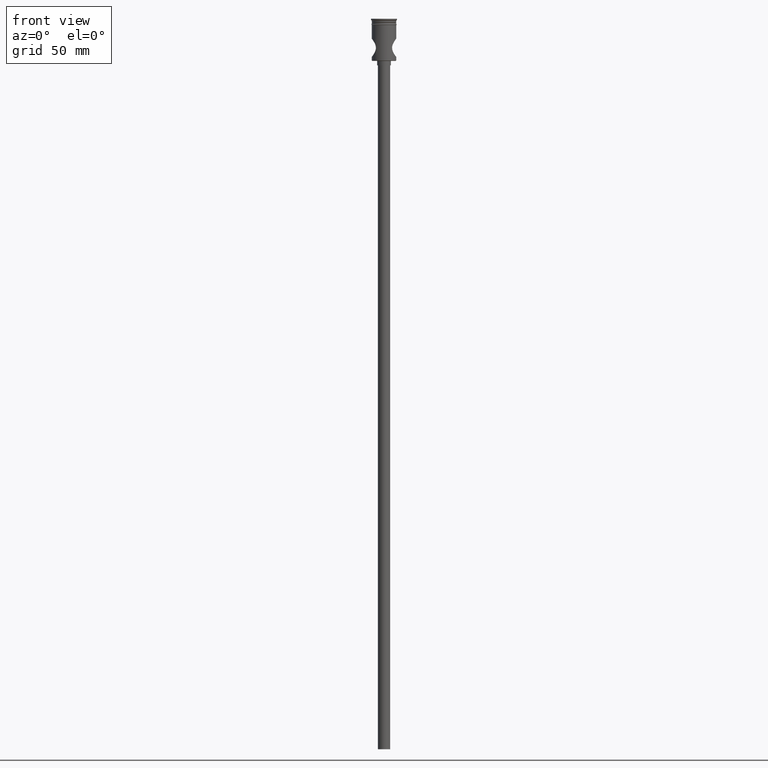
[diagram: clean part render]
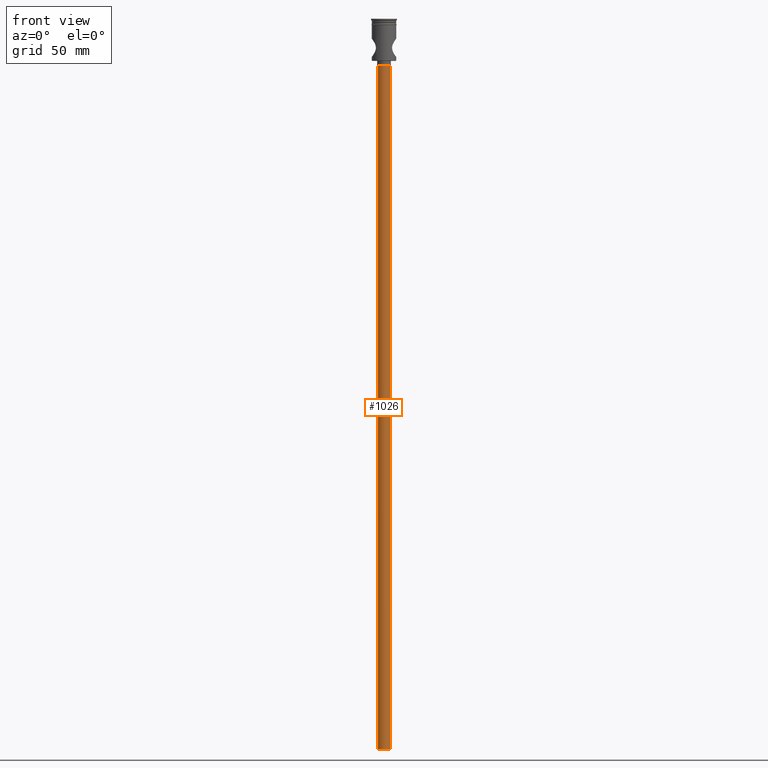
[diagram: same view with one face highlighted and labeled with its STEP entity id]
A machine part, front view. The second image highlights one B-rep face of the part: STEP entity #1026.
In plain terms, the highlighted cylindrical surface (edge-blend (fillet) strip) has radius 4 mm, axis along (-0, -0, 1).
Its self-contained STEP definition (entity closure, byte-faithful):
#73 = ORIENTED_EDGE ( 'NONE', *, *, #1005, .F. ) ;
#108 = AXIS2_PLACEMENT_3D ( 'NONE', #1271, #364, #702 ) ;
#152 = DIRECTION ( 'NONE',  ( 0.000000000000000000, 0.000000000000000000, -1.000000000000000000 ) ) ;
#169 = EDGE_CURVE ( 'NONE', #855, #1195, #841, .T. ) ;
#219 = CARTESIAN_POINT ( 'NONE',  ( 4.000000000000000000, 0.000000000000000000, -30.50000000000000000 ) ) ;
#228 = VECTOR ( 'NONE', #606, 1000.000000000000000 ) ;
#359 = EDGE_LOOP ( 'NONE', ( #1186, #73, #467, #1007 ) ) ;
#364 = DIRECTION ( 'NONE',  ( 0.000000000000000000, 0.000000000000000000, -1.000000000000000000 ) ) ;
#392 = DIRECTION ( 'NONE',  ( -0.000000000000000000, -0.000000000000000000, 1.000000000000000000 ) ) ;
#430 = AXIS2_PLACEMENT_3D ( 'NONE', #986, #392, #861 ) ;
#467 = ORIENTED_EDGE ( 'NONE', *, *, #535, .T. ) ;
#469 = LINE ( 'NONE', #935, #228 ) ;
#535 = EDGE_CURVE ( 'NONE', #1322, #855, #469, .T. ) ;
#606 = DIRECTION ( 'NONE',  ( -0.000000000000000000, -0.000000000000000000, 1.000000000000000000 ) ) ;
#623 = DIRECTION ( 'NONE',  ( -1.000000000000000000, 0.000000000000000000, 0.000000000000000000 ) ) ;
#678 = CARTESIAN_POINT ( 'NONE',  ( 4.000000000000000000, 0.000000000000000000, -477.5000000000000568 ) ) ;
#702 = DIRECTION ( 'NONE',  ( -1.000000000000000000, 0.000000000000000000, 0.000000000000000000 ) ) ;
#841 = CIRCLE ( 'NONE', #108, 4.000000000000000000 ) ;
#847 = VECTOR ( 'NONE', #1493, 1000.000000000000000 ) ;
#855 = VERTEX_POINT ( 'NONE', #219 ) ;
#861 = DIRECTION ( 'NONE',  ( 1.000000000000000000, 0.000000000000000000, 0.000000000000000000 ) ) ;
#914 = CARTESIAN_POINT ( 'NONE',  ( -4.000000000000000000, 4.898587196589412829E-16, -30.50000000000000000 ) ) ;
#935 = CARTESIAN_POINT ( 'NONE',  ( 4.000000000000000000, 0.000000000000000000, -477.5000000000000568 ) ) ;
#945 = LINE ( 'NONE', #1409, #847 ) ;
#979 = FACE_OUTER_BOUND ( 'NONE', #359, .T. ) ;
#986 = CARTESIAN_POINT ( 'NONE',  ( 0.000000000000000000, 0.000000000000000000, -477.5000000000000568 ) ) ;
#1005 = EDGE_CURVE ( 'NONE', #1322, #1450, #1477, .T. ) ;
#1007 = ORIENTED_EDGE ( 'NONE', *, *, #169, .T. ) ;
#1026 = ADVANCED_FACE ( 'NONE', ( #979 ), #1440, .T. ) ;
#1117 = AXIS2_PLACEMENT_3D ( 'NONE', #1208, #152, #623 ) ;
#1186 = ORIENTED_EDGE ( 'NONE', *, *, #1345, .F. ) ;
#1195 = VERTEX_POINT ( 'NONE', #914 ) ;
#1208 = CARTESIAN_POINT ( 'NONE',  ( 0.000000000000000000, 0.000000000000000000, -477.5000000000000568 ) ) ;
#1271 = CARTESIAN_POINT ( 'NONE',  ( 0.000000000000000000, 0.000000000000000000, -30.50000000000000000 ) ) ;
#1322 = VERTEX_POINT ( 'NONE', #678 ) ;
#1345 = EDGE_CURVE ( 'NONE', #1450, #1195, #945, .T. ) ;
#1354 = CARTESIAN_POINT ( 'NONE',  ( -4.000000000000000000, 4.898587196589412829E-16, -477.5000000000000568 ) ) ;
#1409 = CARTESIAN_POINT ( 'NONE',  ( -4.000000000000000000, 4.898587196589412829E-16, -477.5000000000000568 ) ) ;
#1440 = CYLINDRICAL_SURFACE ( 'NONE', #430, 4.000000000000000000 ) ;
#1450 = VERTEX_POINT ( 'NONE', #1354 ) ;
#1477 = CIRCLE ( 'NONE', #1117, 4.000000000000000000 ) ;
#1493 = DIRECTION ( 'NONE',  ( -0.000000000000000000, -0.000000000000000000, 1.000000000000000000 ) ) ;